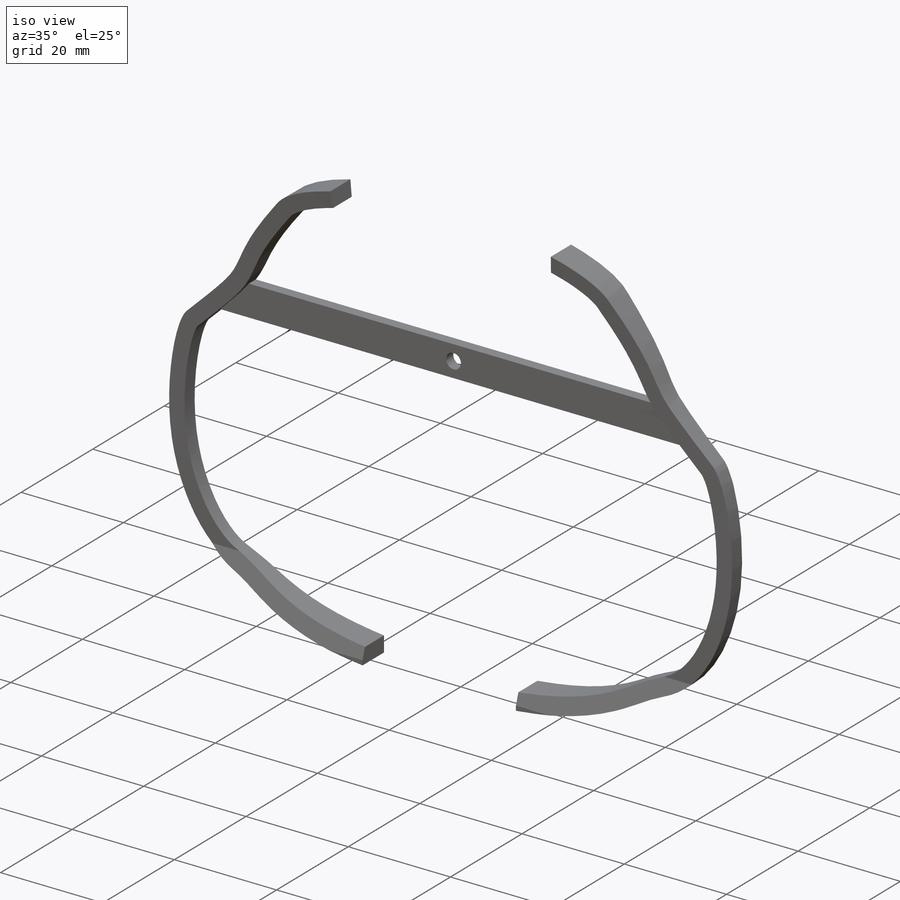
[diagram: iso view]
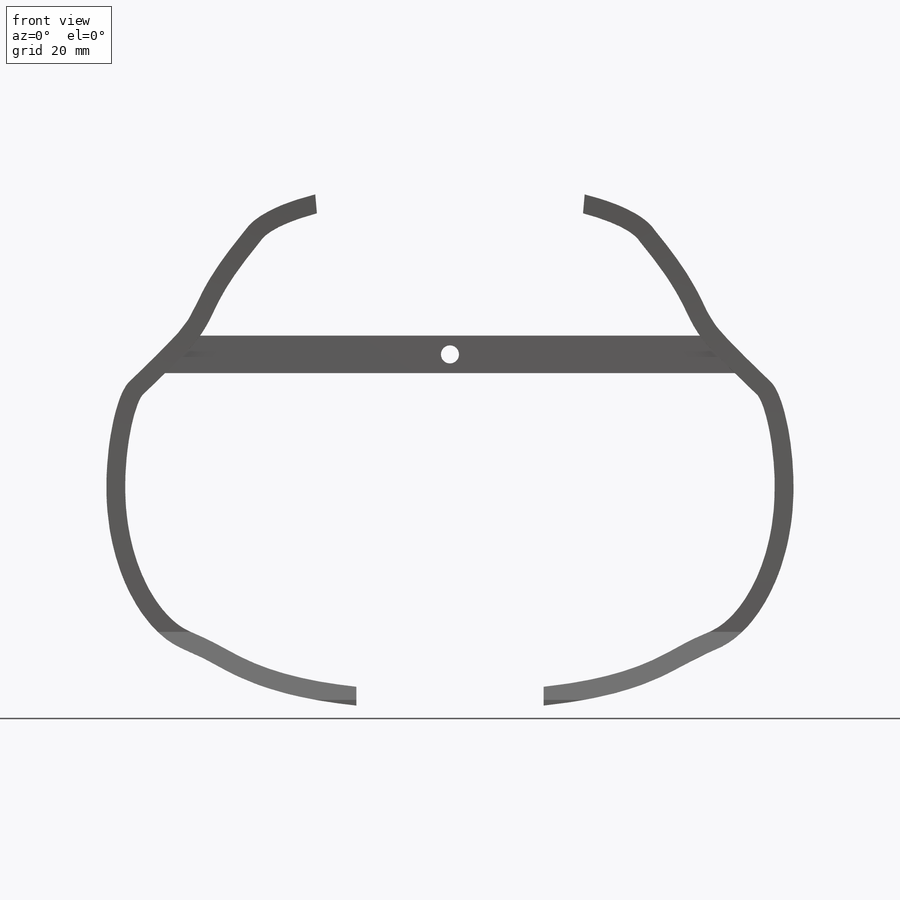
[diagram: front view]
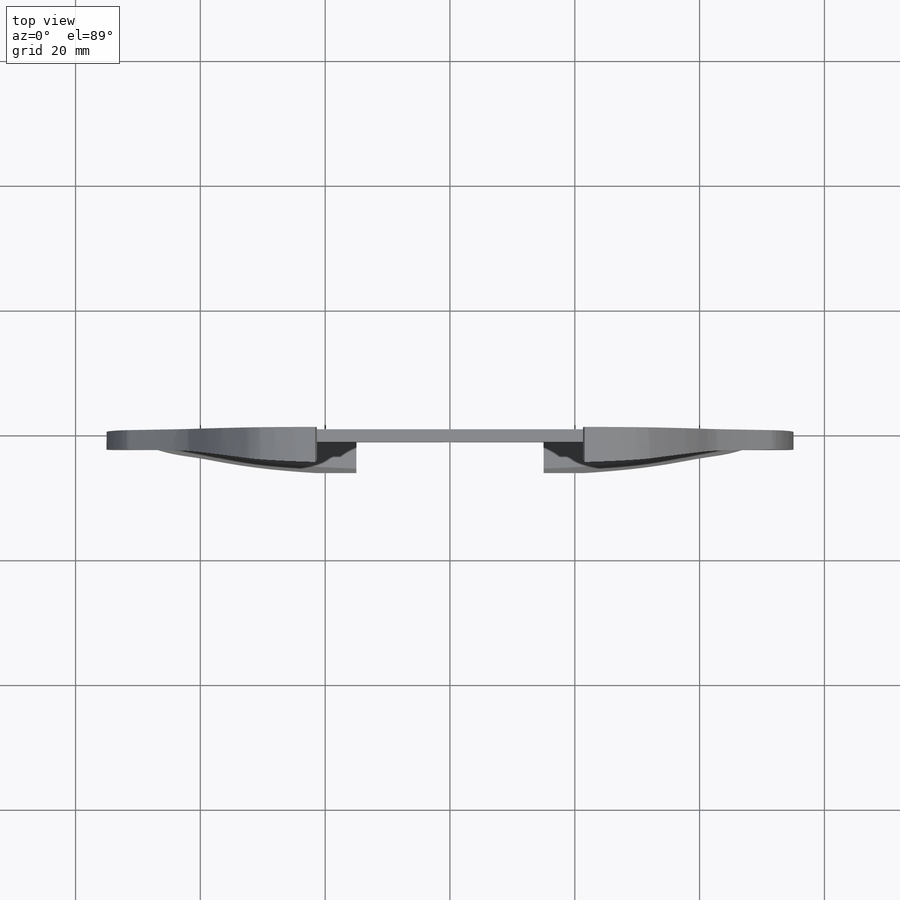
[diagram: top view]
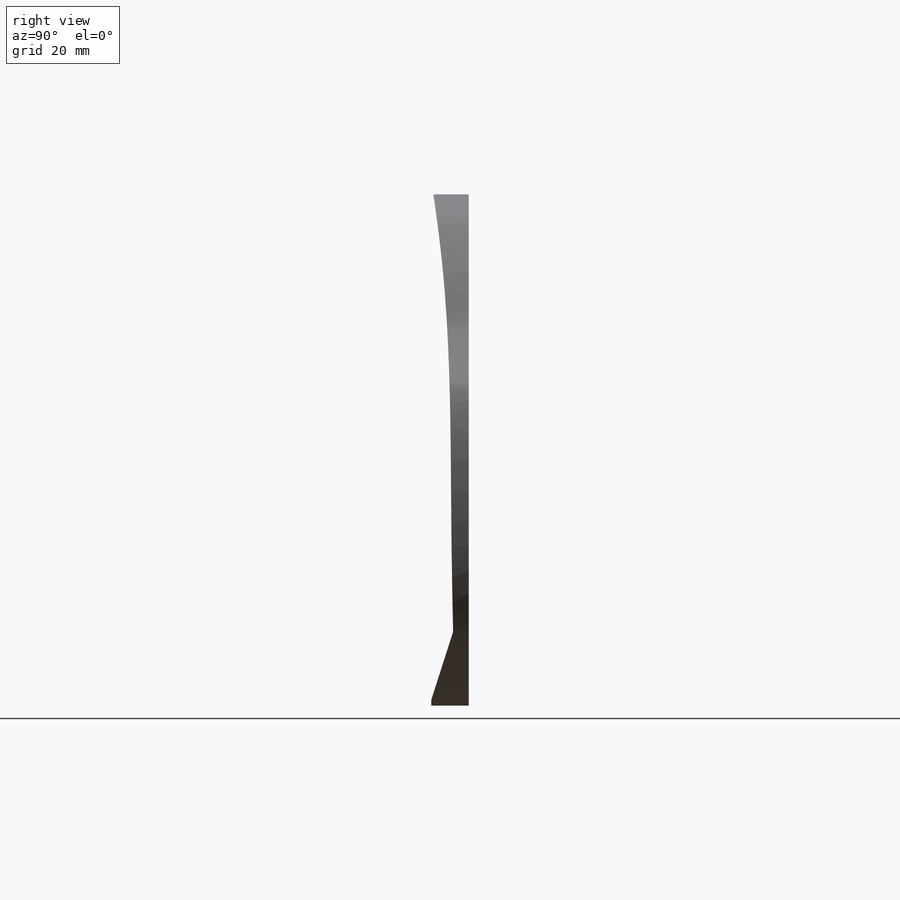
[diagram: right view]
SOLIDWORKS PART (.sldprt)
format: sldprt  version: not decoded by parser v0  size: 732,160 bytes
history: native  units: mm
features: sketch x6, cut_extrude x4, extrude x2, material x1, move_body x1 + 1 further entry (+19 scaffold rows collapsed; 5 parser-record rows omitted)
feature tree (39):
  scaffold x19  (default folders/planes/origin — collapsed)
  material  "ABS"
  "mainneck"
  parser-record x5  (decoder bookkeeping rows leaked as tree rows — omitted from the tree; the rows remain in map.json)
  move_body  "Body-Move/Copy2"
  sketch  "Sketch6"  dims[c1.D1=3.0mm c1.D2=3.0mm c2.D1=0.0mm]
  extrude  "Extrude1"  Depth=6mm
  sketch  "Sketch7"
  cut_extrude  "Extrude2"  [1 undecoded]
  sketch  "Sketch10"  dims[D1=30.0mm D2=20.0mm]
  cut_extrude  "Extrude4"  Depth=23mm
  sketch  "Sketch11"  dims[D1=6.0mm D2=25.0mm]
  extrude  "Extrude5"  Depth=2mm
  sketch  "Sketch12"  dims[D1=2.9mm D2=~83.186488mm]
  cut_extrude  "Extrude6"  Depth=2mm
  sketch  "Sketch13"  dims[D1=44.0mm D2=42.0mm]
  cut_extrude  "Extrude7"  Depth=12mm
decode coverage: 10 of 13 modeling features carry decoded parameters; 1 rows unclassified (native names shown)
note: ~ marks probable driven/reference dimensions
note: 1 parameter value undecoded
note: suppression state not decoded; provenance and decode notes live in map.json
